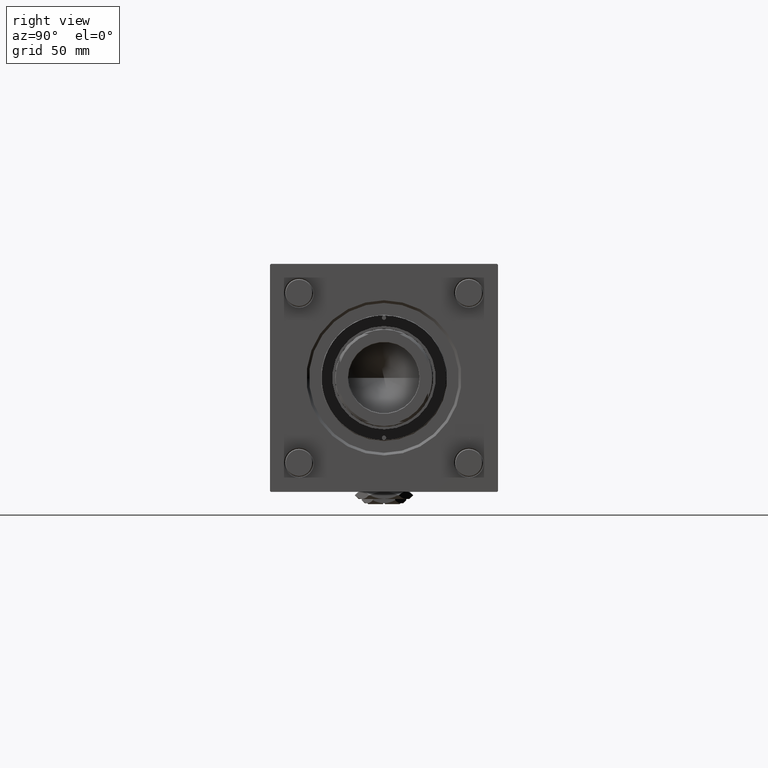
[diagram: clean part render]
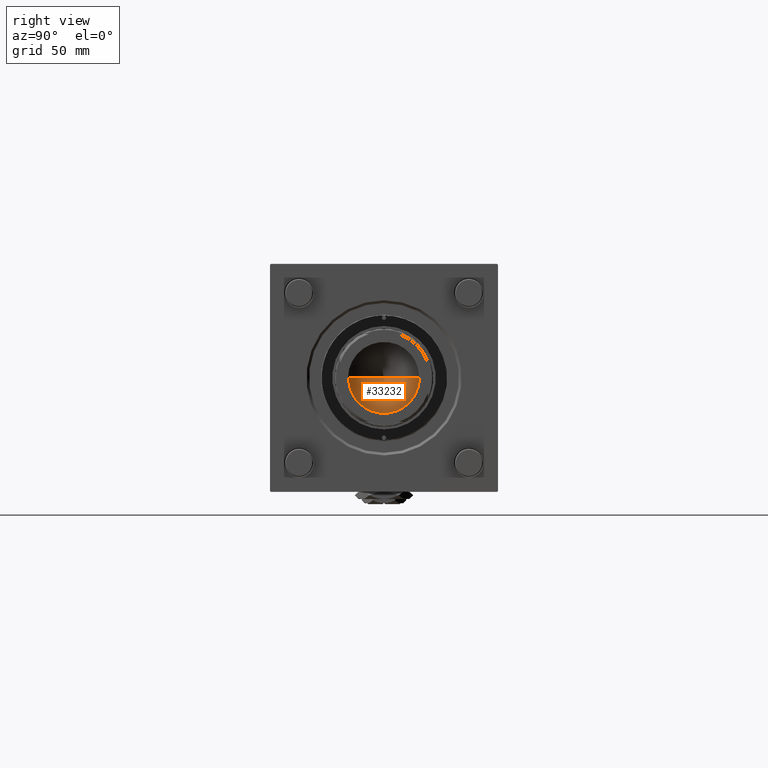
[diagram: same view with one face highlighted and labeled with its STEP entity id]
A machine part, right view. The second image highlights one B-rep face of the part: STEP entity #33232.
In plain terms, the highlighted conical surface has half-angle 59 deg.
Its self-contained STEP definition (entity closure, byte-faithful):
#659 = CONICAL_SURFACE ( 'NONE', #39789, 20.24999999999998934, 1.029744258676652313 ) ;
#1766 = CARTESIAN_POINT ( 'NONE',  ( -20.24999999999998934, 2.479909768273389117E-15, 222.0000000000000284 ) ) ;
#3993 = CARTESIAN_POINT ( 'NONE',  ( 0.000000000000000000, 0.000000000000000000, 222.0000000000000284 ) ) ;
#7129 = CARTESIAN_POINT ( 'NONE',  ( 20.24999999999998934, 0.000000000000000000, 222.0000000000000284 ) ) ;
#7887 = DIRECTION ( 'NONE',  ( -0.000000000000000000, -0.000000000000000000, 1.000000000000000000 ) ) ;
#8486 = ORIENTED_EDGE ( 'NONE', *, *, #21107, .F. ) ;
#12879 = DIRECTION ( 'NONE',  ( -0.8571673007021112234, 1.049727191138617340E-16, 0.5150380749100560429 ) ) ;
#15086 = CARTESIAN_POINT ( 'NONE',  ( -1.584115414415908206E-14, 0.000000000000000000, 209.8325724646918786 ) ) ;
#15107 = VERTEX_POINT ( 'NONE', #45241 ) ;
#17351 = CARTESIAN_POINT ( 'NONE',  ( -20.24999999999998934, 2.479909768273389117E-15, 222.0000000000000284 ) ) ;
#19670 = AXIS2_PLACEMENT_3D ( 'NONE', #3993, #7887, #53646 ) ;
#19963 = VECTOR ( 'NONE', #48389, 1000.000000000000000 ) ;
#21107 = EDGE_CURVE ( 'NONE', #46032, #41707, #40106, .T. ) ;
#27270 = CARTESIAN_POINT ( 'NONE',  ( 0.000000000000000000, 0.000000000000000000, 222.0000000000000284 ) ) ;
#27446 = ORIENTED_EDGE ( 'NONE', *, *, #32077, .T. ) ;
#32077 = EDGE_CURVE ( 'NONE', #15107, #41707, #37844, .T. ) ;
#33232 = ADVANCED_FACE ( 'NONE', ( #59034 ), #659, .F. ) ;
#37844 = CIRCLE ( 'NONE', #19670, 20.24999999999998934 ) ;
#39395 = EDGE_LOOP ( 'NONE', ( #8486, #55503, #27446 ) ) ;
#39789 = AXIS2_PLACEMENT_3D ( 'NONE', #27270, #45546, #44658 ) ;
#40106 = LINE ( 'NONE', #17351, #51044 ) ;
#41707 = VERTEX_POINT ( 'NONE', #1766 ) ;
#41798 = EDGE_CURVE ( 'NONE', #46032, #15107, #48091, .T. ) ;
#44658 = DIRECTION ( 'NONE',  ( 1.000000000000000000, 0.000000000000000000, 0.000000000000000000 ) ) ;
#45241 = CARTESIAN_POINT ( 'NONE',  ( 20.24999999999998934, 0.000000000000000000, 222.0000000000000284 ) ) ;
#45546 = DIRECTION ( 'NONE',  ( -0.000000000000000000, -0.000000000000000000, 1.000000000000000000 ) ) ;
#46032 = VERTEX_POINT ( 'NONE', #15086 ) ;
#48091 = LINE ( 'NONE', #7129, #19963 ) ;
#48389 = DIRECTION ( 'NONE',  ( 0.8571673007021112234, 0.000000000000000000, 0.5150380749100560429 ) ) ;
#51044 = VECTOR ( 'NONE', #12879, 1000.000000000000000 ) ;
#53646 = DIRECTION ( 'NONE',  ( 1.000000000000000000, 0.000000000000000000, 0.000000000000000000 ) ) ;
#55503 = ORIENTED_EDGE ( 'NONE', *, *, #41798, .T. ) ;
#59034 = FACE_OUTER_BOUND ( 'NONE', #39395, .T. ) ;